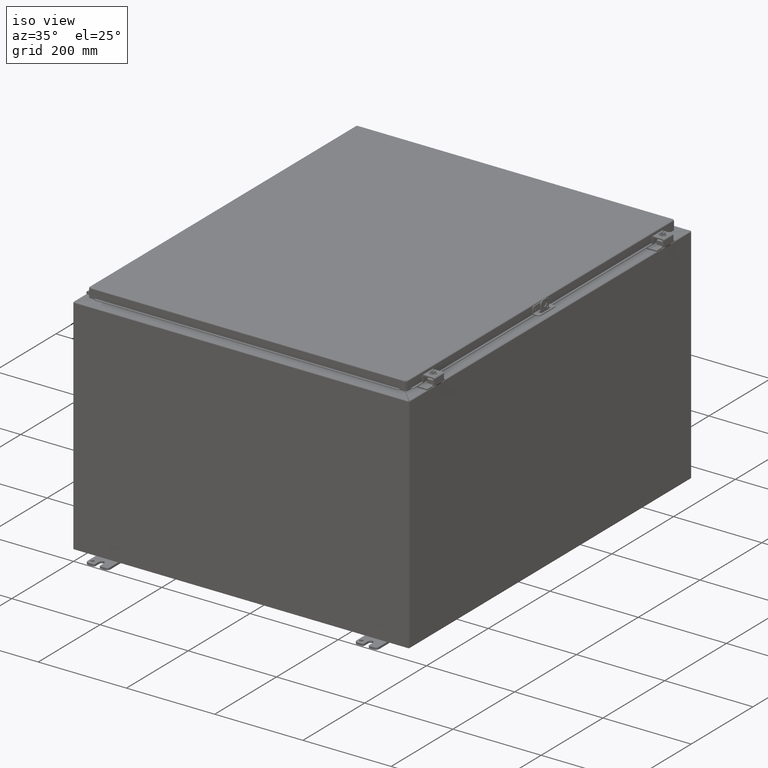
[diagram: clean part render]
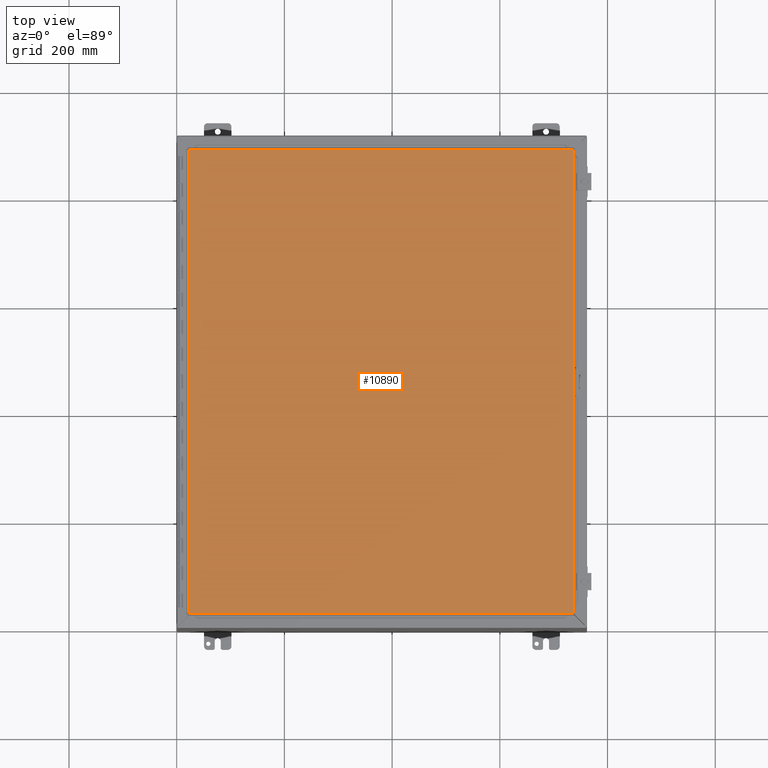
[diagram: tour spotlight — one face highlighted and labeled with its STEP entity id]
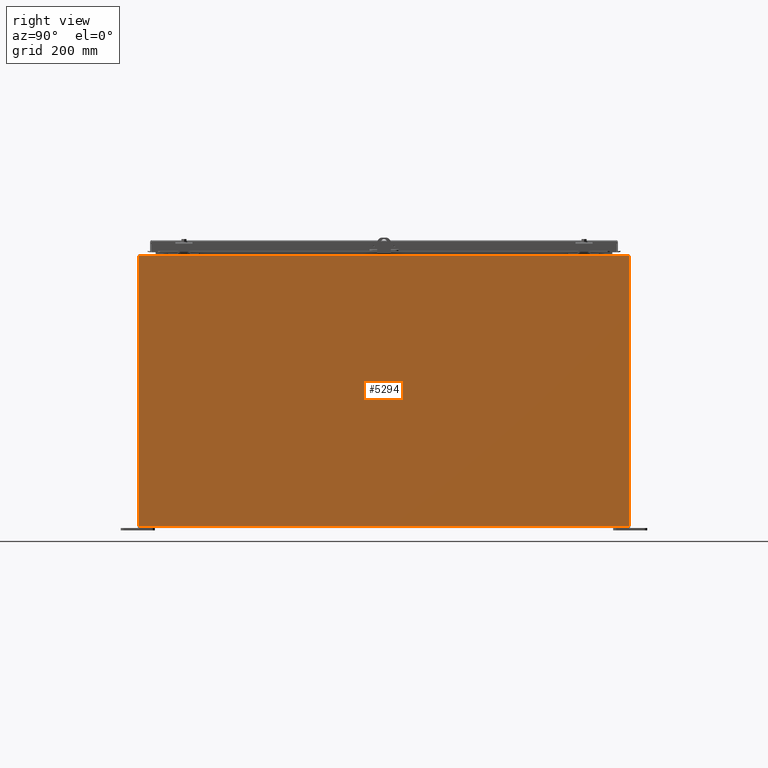
[diagram: tour spotlight — one face highlighted and labeled with its STEP entity id]
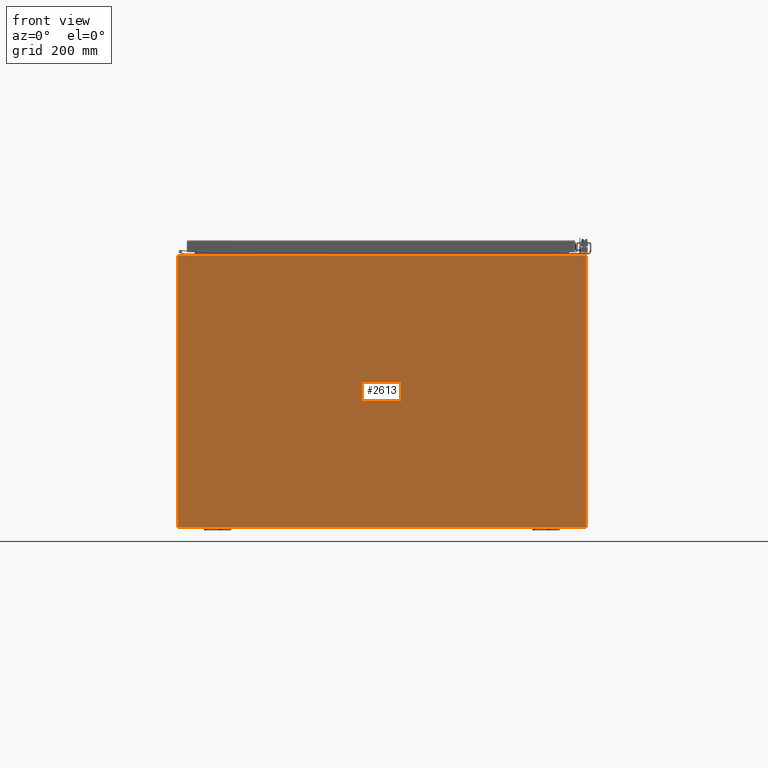
[diagram: tour spotlight — one face highlighted and labeled with its STEP entity id]
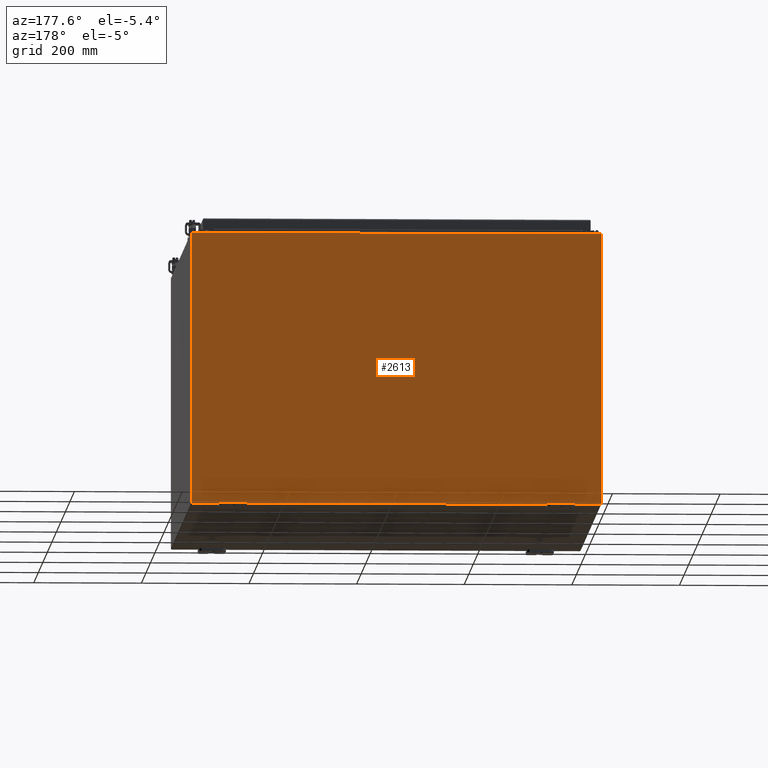
[diagram: tour spotlight — one face highlighted and labeled with its STEP entity id]
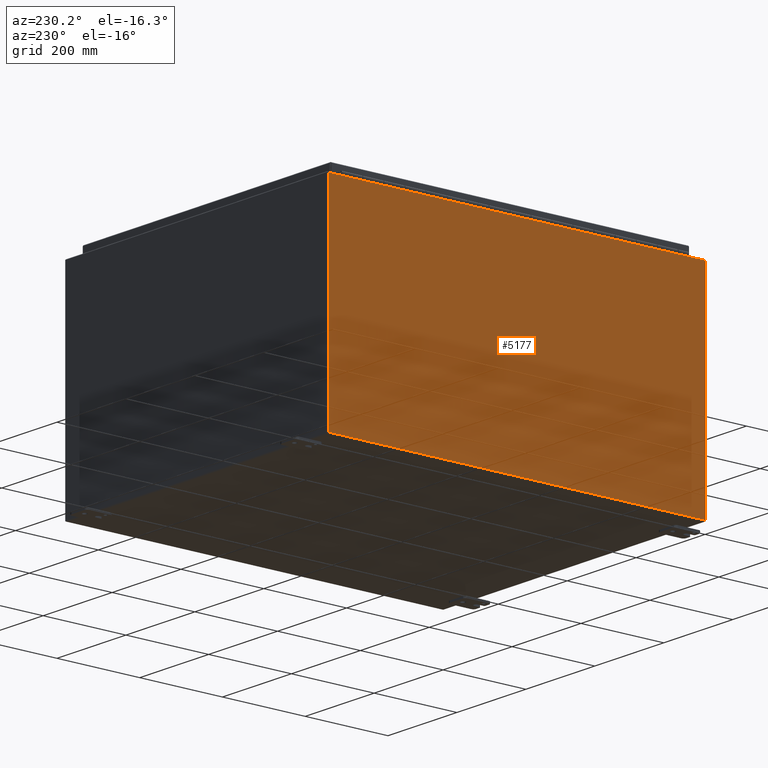
[diagram: tour spotlight — one face highlighted and labeled with its STEP entity id]
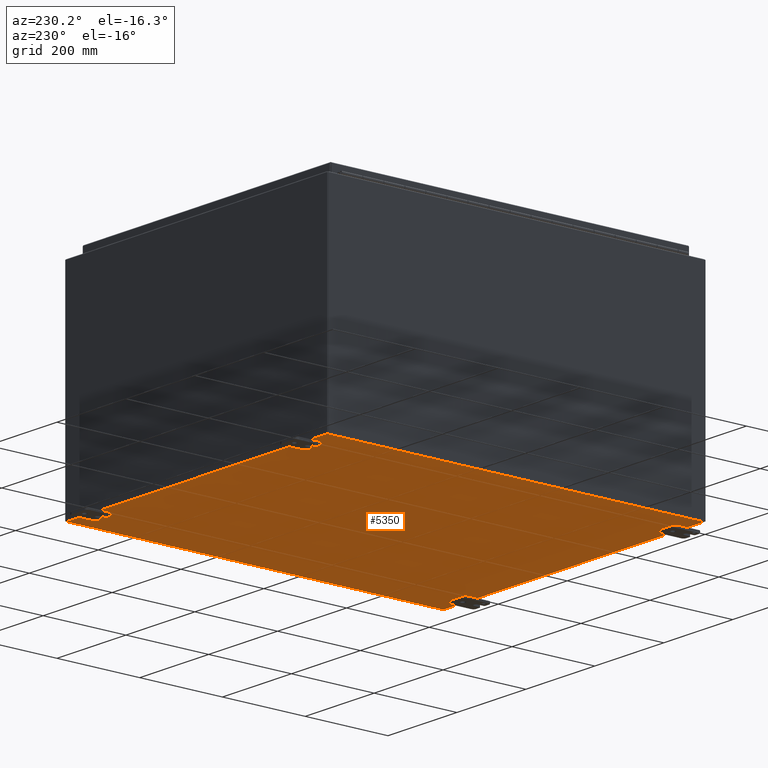
[diagram: tour spotlight — one face highlighted and labeled with its STEP entity id]
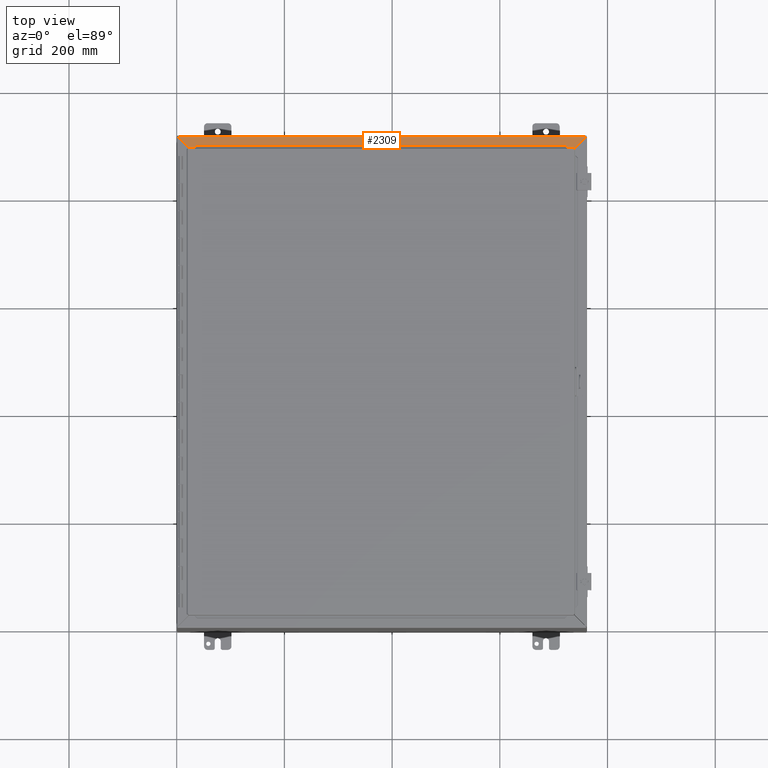
[diagram: tour spotlight — one face highlighted and labeled with its STEP entity id]
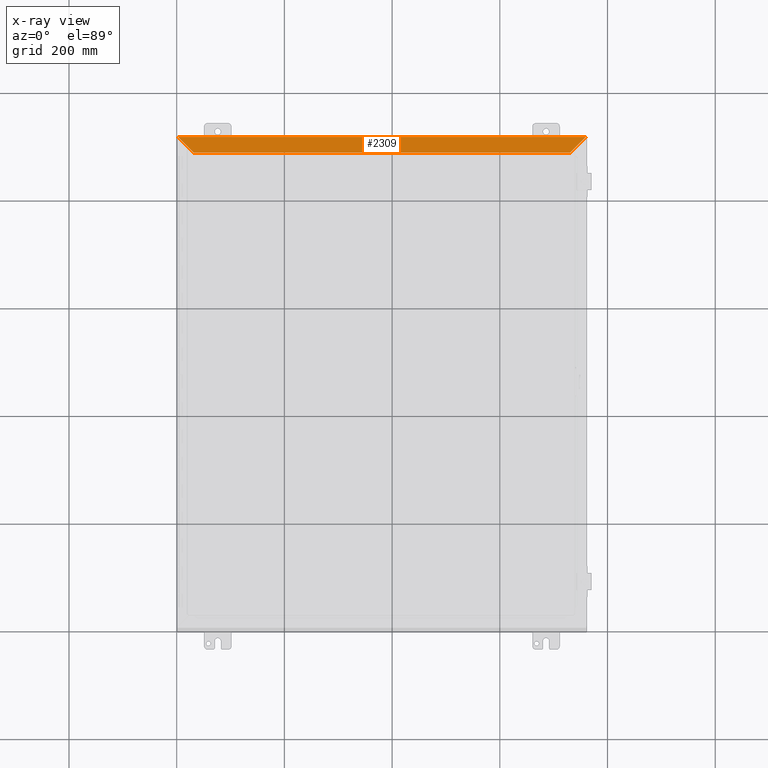
[diagram: x-ray of the same camera — body ghosted, this tour face saturated]
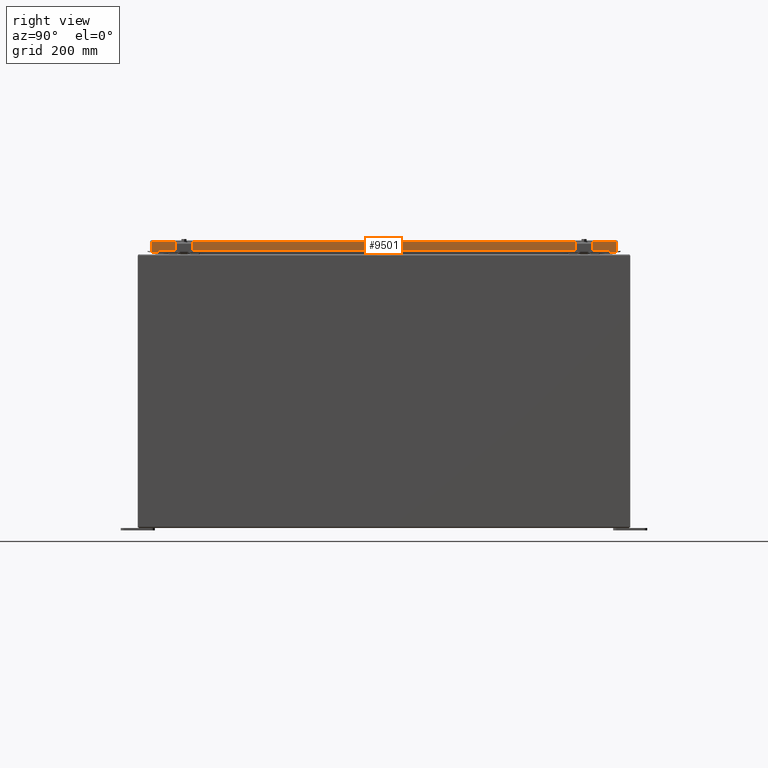
[diagram: tour spotlight — one face highlighted and labeled with its STEP entity id]
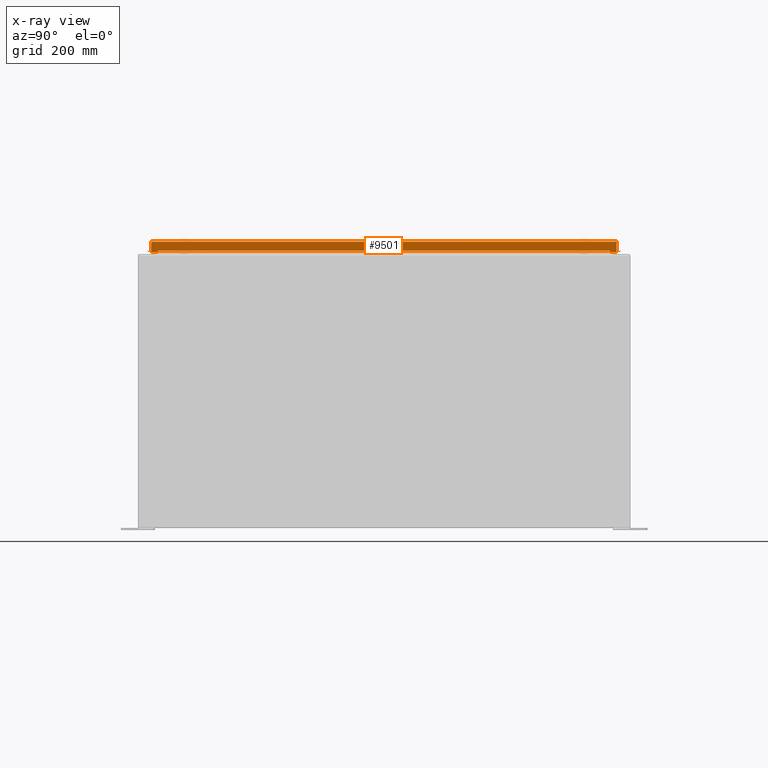
[diagram: x-ray of the same camera — body ghosted, this tour face saturated]
A machine part: a face-by-face anatomy tour. The part has 982 B-rep faces; the first image is the clean iso view, then the 8 largest visible faces are spotlighted one at a time (largest first), each with its STEP entity span.

Face 1 — top view, entity #10890. In plain terms, the highlighted planar face has unit normal (-0, -0, -1).
Definition (entity closure, byte-faithful):
#10047=CARTESIAN_POINT('',(-14.08225,-16.988500000000005,-2.185478E-017));
#10048=VERTEX_POINT('',#10047);
#10059=CARTESIAN_POINT('',(14.08225,-16.988500000000002,-1.092739E-017));
#10060=VERTEX_POINT('',#10059);
#10061=CARTESIAN_POINT('',(14.08225,-16.988500000000005,0.0));
#10062=DIRECTION('',(-1.0,0.0,0.0));
#10063=VECTOR('',#10062,28.1645);
#10064=LINE('',#10061,#10063);
#10065=EDGE_CURVE('',#10060,#10048,#10064,.T.);
#10181=CARTESIAN_POINT('',(-14.082250000000005,16.988500000000005,-2.185478E-017));
#10182=VERTEX_POINT('',#10181);
#10280=CARTESIAN_POINT('',(14.08225,16.988500000000005,-1.092739E-017));
#10281=VERTEX_POINT('',#10280);
#10292=CARTESIAN_POINT('',(-14.082250000000005,16.988500000000005,0.0));
#10293=DIRECTION('',(1.0,0.0,0.0));
#10294=VECTOR('',#10293,28.164500000000004);
#10295=LINE('',#10292,#10294);
#10296=EDGE_CURVE('',#10182,#10281,#10295,.T.);
#10601=CARTESIAN_POINT('',(-14.082250000000002,-16.988500000000009,0.0));
#10602=DIRECTION('',(0.0,1.0,0.0));
#10603=VECTOR('',#10602,33.977000000000011);
#10604=LINE('',#10601,#10603);
#10605=EDGE_CURVE('',#10048,#10182,#10604,.T.);
#10695=CARTESIAN_POINT('',(14.08225,16.988500000000005,0.0));
#10696=DIRECTION('',(0.0,-1.0,0.0));
#10697=VECTOR('',#10696,33.977000000000004);
#10698=LINE('',#10695,#10697);
#10699=EDGE_CURVE('',#10281,#10060,#10698,.T.);
#10879=CARTESIAN_POINT('',(-6.993531E-016,9.772905E-016,0.0));
#10880=DIRECTION('',(0.0,0.0,1.0));
#10881=DIRECTION('',(1.0,0.0,0.0));
#10882=AXIS2_PLACEMENT_3D('',#10879,#10880,#10881);
#10883=PLANE('',#10882);
#10884=ORIENTED_EDGE('',*,*,#10605,.T.);
#10885=ORIENTED_EDGE('',*,*,#10296,.T.);
#10886=ORIENTED_EDGE('',*,*,#10699,.T.);
#10887=ORIENTED_EDGE('',*,*,#10065,.T.);
#10888=EDGE_LOOP('',(#10884,#10885,#10886,#10887));
#10889=FACE_OUTER_BOUND('',#10888,.T.);
#10890=ADVANCED_FACE('',(#10889),#10883,.F.);

Face 2 — right view, entity #5294. In plain terms, the highlighted planar face has unit normal (-1, -0, -0).
Definition (entity closure, byte-faithful):
#4470=CARTESIAN_POINT('',(29.999999999996735,7.466095E-015,19.89475000000002));
#4471=VERTEX_POINT('',#4470);
#4873=CARTESIAN_POINT('',(29.999999999996732,35.852000000000018,19.894750000000009));
#4874=VERTEX_POINT('',#4873);
#4875=CARTESIAN_POINT('',(29.999999999996732,35.852000000000018,19.894750000000013));
#4876=DIRECTION('',(0.0,-1.0,0.0));
#4877=VECTOR('',#4876,35.852000000000011);
#4878=LINE('',#4875,#4877);
#4879=EDGE_CURVE('',#4874,#4471,#4878,.T.);
#4934=CARTESIAN_POINT('',(29.999999999999986,6.690005E-015,0.105250000000018));
#4935=VERTEX_POINT('',#4934);
#4942=CARTESIAN_POINT('',(29.999999999999986,6.690005E-015,0.105250000000018));
#4943=DIRECTION('',(-1.646246E-013,-4.636020E-029,1.0));
#4944=VECTOR('',#4943,19.7895);
#4945=LINE('',#4942,#4944);
#4946=EDGE_CURVE('',#4935,#4471,#4945,.T.);
#4981=CARTESIAN_POINT('',(29.999999999999979,35.852000000000018,0.105250000000018));
#4982=VERTEX_POINT('',#4981);
#4983=CARTESIAN_POINT('',(29.999999999994333,35.852000000000025,19.894750000000009));
#4984=DIRECTION('',(2.854450E-013,-3.590504E-016,-1.0));
#4985=VECTOR('',#4984,19.78949999999999);
#4986=LINE('',#4983,#4985);
#4987=EDGE_CURVE('',#4874,#4982,#4986,.T.);
#5200=CARTESIAN_POINT('',(29.999999999999996,3.552714E-015,0.105250000000018));
#5201=DIRECTION('',(0.0,1.0,0.0));
#5202=VECTOR('',#5201,35.852000000000018);
#5203=LINE('',#5200,#5202);
#5204=EDGE_CURVE('',#4935,#4982,#5203,.T.);
#5283=CARTESIAN_POINT('',(30.000000000002469,17.926000000000005,-14.86218388763343));
#5284=DIRECTION('',(-1.0,-2.819443E-016,-1.653775E-013));
#5285=DIRECTION('',(-1.653775E-013,-2.434996E-016,1.0));
#5286=AXIS2_PLACEMENT_3D('',#5283,#5284,#5285);
#5287=PLANE('',#5286);
#5288=ORIENTED_EDGE('',*,*,#4879,.T.);
#5289=ORIENTED_EDGE('',*,*,#4946,.F.);
#5290=ORIENTED_EDGE('',*,*,#5204,.T.);
#5291=ORIENTED_EDGE('',*,*,#4987,.F.);
#5292=EDGE_LOOP('',(#5288,#5289,#5290,#5291));
#5293=FACE_OUTER_BOUND('',#5292,.T.);
#5294=ADVANCED_FACE('',(#5293),#5287,.F.);

Face 3 — front view, entity #2613. In plain terms, the highlighted planar face has unit normal (-0, 1, -0).
Definition (entity closure, byte-faithful):
#2270=CARTESIAN_POINT('',(29.925999999999995,19.857749999999999,-2.185478E-017));
#2271=VERTEX_POINT('',#2270);
#2317=CARTESIAN_POINT('',(-5.594825E-015,19.857749999999999,-2.185478E-017));
#2318=VERTEX_POINT('',#2317);
#2319=CARTESIAN_POINT('',(-5.329071E-015,19.857749999999999,-1.092739E-017));
#2320=DIRECTION('',(1.0,0.0,0.0));
#2321=VECTOR('',#2320,29.926000000000002);
#2322=LINE('',#2319,#2321);
#2323=EDGE_CURVE('',#2318,#2271,#2322,.T.);
#2565=CARTESIAN_POINT('',(5.170813E-016,0.0,-1.092739E-017));
#2566=VERTEX_POINT('',#2565);
#2567=CARTESIAN_POINT('',(-5.562601E-015,19.857750000000003,-1.092739E-017));
#2568=DIRECTION('',(0.0,-1.0,0.0));
#2569=VECTOR('',#2568,19.857750000000003);
#2570=LINE('',#2567,#2569);
#2571=EDGE_CURVE('',#2318,#2566,#2570,.T.);
#2590=CARTESIAN_POINT('',(14.962999999999997,9.981499999999999,-1.092739E-017));
#2591=DIRECTION('',(0.0,0.0,1.0));
#2592=DIRECTION('',(1.0,0.0,0.0));
#2593=AXIS2_PLACEMENT_3D('',#2590,#2591,#2592);
#2594=PLANE('',#2593);
#2595=ORIENTED_EDGE('',*,*,#2323,.T.);
#2596=CARTESIAN_POINT('',(29.926000000000002,0.0,-1.092739E-017));
#2597=VERTEX_POINT('',#2596);
#2598=CARTESIAN_POINT('',(29.926000000000002,0.0,-1.092739E-017));
#2599=DIRECTION('',(0.0,1.0,0.0));
#2600=VECTOR('',#2599,19.857749999999999);
#2601=LINE('',#2598,#2600);
#2602=EDGE_CURVE('',#2597,#2271,#2601,.T.);
#2603=ORIENTED_EDGE('',*,*,#2602,.F.);
#2604=CARTESIAN_POINT('',(5.170813E-016,0.0,-1.092739E-017));
#2605=DIRECTION('',(1.0,0.0,0.0));
#2606=VECTOR('',#2605,29.926000000000002);
#2607=LINE('',#2604,#2606);
#2608=EDGE_CURVE('',#2566,#2597,#2607,.T.);
#2609=ORIENTED_EDGE('',*,*,#2608,.F.);
#2610=ORIENTED_EDGE('',*,*,#2571,.F.);
#2611=EDGE_LOOP('',(#2595,#2603,#2609,#2610));
#2612=FACE_OUTER_BOUND('',#2611,.T.);
#2613=ADVANCED_FACE('',(#2612),#2594,.F.);

Face 4 — auxiliary view, entity #2613. In plain terms, the highlighted planar face has unit normal (0, -1, 0).
Definition (entity closure, byte-faithful):
#2270=CARTESIAN_POINT('',(29.925999999999995,19.857749999999999,-2.185478E-017));
#2271=VERTEX_POINT('',#2270);
#2317=CARTESIAN_POINT('',(-5.594825E-015,19.857749999999999,-2.185478E-017));
#2318=VERTEX_POINT('',#2317);
#2319=CARTESIAN_POINT('',(-5.329071E-015,19.857749999999999,-1.092739E-017));
#2320=DIRECTION('',(1.0,0.0,0.0));
#2321=VECTOR('',#2320,29.926000000000002);
#2322=LINE('',#2319,#2321);
#2323=EDGE_CURVE('',#2318,#2271,#2322,.T.);
#2565=CARTESIAN_POINT('',(5.170813E-016,0.0,-1.092739E-017));
#2566=VERTEX_POINT('',#2565);
#2567=CARTESIAN_POINT('',(-5.562601E-015,19.857750000000003,-1.092739E-017));
#2568=DIRECTION('',(0.0,-1.0,0.0));
#2569=VECTOR('',#2568,19.857750000000003);
#2570=LINE('',#2567,#2569);
#2571=EDGE_CURVE('',#2318,#2566,#2570,.T.);
#2590=CARTESIAN_POINT('',(14.962999999999997,9.981499999999999,-1.092739E-017));
#2591=DIRECTION('',(0.0,0.0,1.0));
#2592=DIRECTION('',(1.0,0.0,0.0));
#2593=AXIS2_PLACEMENT_3D('',#2590,#2591,#2592);
#2594=PLANE('',#2593);
#2595=ORIENTED_EDGE('',*,*,#2323,.T.);
#2596=CARTESIAN_POINT('',(29.926000000000002,0.0,-1.092739E-017));
#2597=VERTEX_POINT('',#2596);
#2598=CARTESIAN_POINT('',(29.926000000000002,0.0,-1.092739E-017));
#2599=DIRECTION('',(0.0,1.0,0.0));
#2600=VECTOR('',#2599,19.857749999999999);
#2601=LINE('',#2598,#2600);
#2602=EDGE_CURVE('',#2597,#2271,#2601,.T.);
#2603=ORIENTED_EDGE('',*,*,#2602,.F.);
#2604=CARTESIAN_POINT('',(5.170813E-016,0.0,-1.092739E-017));
#2605=DIRECTION('',(1.0,0.0,0.0));
#2606=VECTOR('',#2605,29.926000000000002);
#2607=LINE('',#2604,#2606);
#2608=EDGE_CURVE('',#2566,#2597,#2607,.T.);
#2609=ORIENTED_EDGE('',*,*,#2608,.F.);
#2610=ORIENTED_EDGE('',*,*,#2571,.F.);
#2611=EDGE_LOOP('',(#2595,#2603,#2609,#2610));
#2612=FACE_OUTER_BOUND('',#2611,.T.);
#2613=ADVANCED_FACE('',(#2612),#2594,.F.);

Face 5 — auxiliary view, entity #5177. In plain terms, the highlighted planar face has unit normal (1, 0, 0).
Definition (entity closure, byte-faithful):
#4503=CARTESIAN_POINT('',(-3.864561E-013,35.852000000000004,19.894750000000013));
#4504=VERTEX_POINT('',#4503);
#4610=CARTESIAN_POINT('',(-3.754675E-013,4.523219E-016,19.894750000000002));
#4611=VERTEX_POINT('',#4610);
#4612=CARTESIAN_POINT('',(-3.754935E-013,0.0,19.894749999999995));
#4613=DIRECTION('',(0.0,1.0,0.0));
#4614=VECTOR('',#4613,35.852000000000004);
#4615=LINE('',#4612,#4614);
#4616=EDGE_CURVE('',#4611,#4504,#4615,.T.);
#5013=CARTESIAN_POINT('',(-1.101533E-014,35.852000000000004,0.105249999999998));
#5014=VERTEX_POINT('',#5013);
#5021=CARTESIAN_POINT('',(-1.101533E-014,35.852000000000004,0.105249999999998));
#5022=DIRECTION('',(0.0,0.0,1.0));
#5023=VECTOR('',#5022,19.789500000000015);
#5024=LINE('',#5021,#5023);
#5025=EDGE_CURVE('',#5014,#4504,#5024,.T.);
#5060=CARTESIAN_POINT('',(-4.521314E-017,-9.967744E-018,0.105249999999998));
#5061=VERTEX_POINT('',#5060);
#5062=CARTESIAN_POINT('',(-3.742655E-013,-6.157755E-015,19.894750000000002));
#5063=DIRECTION('',(0.0,0.0,-1.0));
#5064=VECTOR('',#5063,19.789500000000004);
#5065=LINE('',#5062,#5064);
#5066=EDGE_CURVE('',#4611,#5061,#5065,.T.);
#5083=CARTESIAN_POINT('',(-1.103719E-014,35.852000000000004,0.105249999999998));
#5084=DIRECTION('',(0.0,-1.0,0.0));
#5085=VECTOR('',#5084,35.852000000000004);
#5086=LINE('',#5083,#5085);
#5087=EDGE_CURVE('',#5014,#5061,#5086,.T.);
#5166=CARTESIAN_POINT('',(3.383319E-014,17.925999999999995,-14.862183887633455));
#5167=DIRECTION('',(1.0,0.0,0.0));
#5168=DIRECTION('',(0.0,0.0,-1.0));
#5169=AXIS2_PLACEMENT_3D('',#5166,#5167,#5168);
#5170=PLANE('',#5169);
#5171=ORIENTED_EDGE('',*,*,#4616,.T.);
#5172=ORIENTED_EDGE('',*,*,#5025,.F.);
#5173=ORIENTED_EDGE('',*,*,#5087,.T.);
#5174=ORIENTED_EDGE('',*,*,#5066,.F.);
#5175=EDGE_LOOP('',(#5171,#5172,#5173,#5174));
#5176=FACE_OUTER_BOUND('',#5175,.T.);
#5177=ADVANCED_FACE('',(#5176),#5170,.F.);

Face 6 — auxiliary view, entity #5350. In plain terms, the highlighted planar face has unit normal (0, 0, 1).
Definition (entity closure, byte-faithful):
#5089=CARTESIAN_POINT('',(0.10524999999999,35.852000000000004,-5.463696E-017));
#5090=VERTEX_POINT('',#5089);
#5098=CARTESIAN_POINT('',(0.105250000000001,0.0,-5.463696E-017));
#5099=VERTEX_POINT('',#5098);
#5100=CARTESIAN_POINT('',(0.105249999999998,0.0,-3.278218E-017));
#5101=DIRECTION('',(0.0,1.0,0.0));
#5102=VECTOR('',#5101,35.852000000000004);
#5103=LINE('',#5100,#5102);
#5104=EDGE_CURVE('',#5099,#5090,#5103,.T.);
#5206=CARTESIAN_POINT('',(29.894750000000009,0.0,-6.556435E-017));
#5207=VERTEX_POINT('',#5206);
#5215=CARTESIAN_POINT('',(29.894749999999995,35.852000000000011,-6.556435E-017));
#5216=VERTEX_POINT('',#5215);
#5217=CARTESIAN_POINT('',(29.894749999999988,35.852000000000004,-3.278218E-017));
#5218=DIRECTION('',(0.0,-1.0,0.0));
#5219=VECTOR('',#5218,35.852000000000004);
#5220=LINE('',#5217,#5219);
#5221=EDGE_CURVE('',#5216,#5207,#5220,.T.);
#5318=CARTESIAN_POINT('',(29.894749999999995,35.852000000000011,-3.278218E-017));
#5319=DIRECTION('',(-1.0,0.0,0.0));
#5320=VECTOR('',#5319,29.789500000000007);
#5321=LINE('',#5318,#5320);
#5322=EDGE_CURVE('',#5216,#5090,#5321,.T.);
#5334=CARTESIAN_POINT('',(14.999999999999996,17.925999999999998,-3.278218E-017));
#5335=DIRECTION('',(0.0,0.0,1.0));
#5336=DIRECTION('',(1.0,0.0,0.0));
#5337=AXIS2_PLACEMENT_3D('',#5334,#5335,#5336);
#5338=PLANE('',#5337);
#5339=ORIENTED_EDGE('',*,*,#5221,.T.);
#5340=CARTESIAN_POINT('',(0.105250000000001,0.0,-3.278218E-017));
#5341=DIRECTION('',(1.0,0.0,0.0));
#5342=VECTOR('',#5341,29.789500000000007);
#5343=LINE('',#5340,#5342);
#5344=EDGE_CURVE('',#5099,#5207,#5343,.T.);
#5345=ORIENTED_EDGE('',*,*,#5344,.F.);
#5346=ORIENTED_EDGE('',*,*,#5104,.T.);
#5347=ORIENTED_EDGE('',*,*,#5322,.F.);
#5348=EDGE_LOOP('',(#5339,#5345,#5346,#5347));
#5349=FACE_OUTER_BOUND('',#5348,.T.);
#5350=ADVANCED_FACE('',(#5349),#5338,.F.);

Face 7 — top view, entity #2309. An x-ray twin of the same camera follows (body ghosted, this face saturated) — the face is partly hidden behind the body. In plain terms, the highlighted planar face has unit normal (0, -0, -1).
Definition (entity closure, byte-faithful):
#1782=CARTESIAN_POINT('',(28.699567696899827,19.963000000000058,1.269749999999996));
#1783=VERTEX_POINT('',#1782);
#1842=CARTESIAN_POINT('',(1.226432303100167,19.963000000000058,1.269749999999996));
#1843=VERTEX_POINT('',#1842);
#1913=CARTESIAN_POINT('',(29.864075840854607,19.963000000000001,0.105249999999993));
#1914=VERTEX_POINT('',#1913);
#1921=CARTESIAN_POINT('',(28.699567696899827,19.963000000000083,1.269749999999996));
#1922=DIRECTION('',(0.70710925375651,-4.961718E-014,-0.707104308607939));
#1923=VECTOR('',#1922,1.646857452039191);
#1924=LINE('',#1921,#1923);
#1925=EDGE_CURVE('',#1783,#1914,#1924,.T.);
#1937=CARTESIAN_POINT('',(0.061924159145384,19.963000000000001,0.105249999999993));
#1938=VERTEX_POINT('',#1937);
#1939=CARTESIAN_POINT('',(0.061924159145385,19.963000000000001,0.105249999999992));
#1940=DIRECTION('',(0.70710925375651,4.961718E-014,0.707104308607939));
#1941=VECTOR('',#1940,1.646857452039193);
#1942=LINE('',#1939,#1941);
#1943=EDGE_CURVE('',#1938,#1843,#1942,.T.);
#2288=CARTESIAN_POINT('',(14.962999999999997,19.962999999999312,-9.843683887633461));
#2289=DIRECTION('',(0.0,-1.0,0.0));
#2290=DIRECTION('',(1.0,0.0,0.0));
#2291=AXIS2_PLACEMENT_3D('',#2288,#2289,#2290);
#2292=PLANE('',#2291);
#2293=ORIENTED_EDGE('',*,*,#1925,.T.);
#2294=CARTESIAN_POINT('',(29.864075840854607,19.963000000000001,0.105249999999993));
#2295=DIRECTION('',(-1.0,0.0,0.0));
#2296=VECTOR('',#2295,29.802151681709223);
#2297=LINE('',#2294,#2296);
#2298=EDGE_CURVE('',#1914,#1938,#2297,.T.);
#2299=ORIENTED_EDGE('',*,*,#2298,.T.);
#2300=ORIENTED_EDGE('',*,*,#1943,.T.);
#2301=CARTESIAN_POINT('',(1.226432303100168,19.963000000000058,1.269749999999996));
#2302=DIRECTION('',(1.0,0.0,0.0));
#2303=VECTOR('',#2302,27.473135393799659);
#2304=LINE('',#2301,#2303);
#2305=EDGE_CURVE('',#1843,#1783,#2304,.T.);
#2306=ORIENTED_EDGE('',*,*,#2305,.T.);
#2307=EDGE_LOOP('',(#2293,#2299,#2300,#2306));
#2308=FACE_OUTER_BOUND('',#2307,.T.);
#2309=ADVANCED_FACE('',(#2308),#2292,.F.);

Face 8 — right view, entity #9501. An x-ray twin of the same camera follows (body ghosted, this face saturated) — the face is partly hidden behind the body. In plain terms, the highlighted planar face has unit normal (-1, -0, 0).
Definition (entity closure, byte-faithful):
#7560=CARTESIAN_POINT('',(14.187500000000018,-0.8125,0.497499999999995));
#7561=VERTEX_POINT('',#7560);
#7568=CARTESIAN_POINT('',(14.187500000000018,-0.812500000000001,0.434499999999995));
#7569=VERTEX_POINT('',#7568);
#7570=CARTESIAN_POINT('',(14.187500000000011,-0.812500000000001,0.434499999999995));
#7571=DIRECTION('',(0.0,0.0,1.0));
#7572=VECTOR('',#7571,0.063);
#7573=LINE('',#7570,#7572);
#7574=EDGE_CURVE('',#7569,#7561,#7573,.T.);
#7600=CARTESIAN_POINT('',(14.187500000000018,-0.687500000000001,0.434499999999995));
#7601=VERTEX_POINT('',#7600);
#7602=CARTESIAN_POINT('',(14.187500000000012,-0.750000000000001,0.434499999999995));
#7603=DIRECTION('',(-1.0,0.0,0.0));
#7604=DIRECTION('',(0.0,-1.0,0.0));
#7605=AXIS2_PLACEMENT_3D('',#7602,#7603,#7604);
#7606=CIRCLE('',#7605,0.0625);
#7607=EDGE_CURVE('',#7601,#7569,#7606,.T.);
#7632=CARTESIAN_POINT('',(14.187500000000018,-0.687500000000001,0.497499999999995));
#7633=VERTEX_POINT('',#7632);
#7634=CARTESIAN_POINT('',(14.187500000000014,-0.6875,0.497499999999995));
#7635=DIRECTION('',(0.0,0.0,-1.0));
#7636=VECTOR('',#7635,0.063);
#7637=LINE('',#7634,#7636);
#7638=EDGE_CURVE('',#7633,#7601,#7637,.T.);
#7662=CARTESIAN_POINT('',(14.187500000000016,-0.75,0.497499999999995));
#7663=DIRECTION('',(-1.0,0.0,0.0));
#7664=DIRECTION('',(0.0,1.0,0.0));
#7665=AXIS2_PLACEMENT_3D('',#7662,#7663,#7664);
#7666=CIRCLE('',#7665,0.0625);
#7667=EDGE_CURVE('',#7561,#7633,#7666,.T.);
#7700=CARTESIAN_POINT('',(14.187500000000016,0.687500000000001,0.497499999999995));
#7701=VERTEX_POINT('',#7700);
#7708=CARTESIAN_POINT('',(14.187500000000016,0.6875,0.434499999999995));
#7709=VERTEX_POINT('',#7708);
#7710=CARTESIAN_POINT('',(14.187500000000011,0.687500000000001,0.434499999999995));
#7711=DIRECTION('',(0.0,0.0,1.0));
#7712=VECTOR('',#7711,0.063);
#7713=LINE('',#7710,#7712);
#7714=EDGE_CURVE('',#7709,#7701,#7713,.T.);
#7740=CARTESIAN_POINT('',(14.187500000000016,0.8125,0.434499999999995));
#7741=VERTEX_POINT('',#7740);
#7742=CARTESIAN_POINT('',(14.187500000000012,0.75,0.434499999999995));
#7743=DIRECTION('',(-1.0,0.0,0.0));
#7744=DIRECTION('',(0.0,-1.0,0.0));
#7745=AXIS2_PLACEMENT_3D('',#7742,#7743,#7744);
#7746=CIRCLE('',#7745,0.0625);
#7747=EDGE_CURVE('',#7741,#7709,#7746,.T.);
#7772=CARTESIAN_POINT('',(14.187500000000016,0.8125,0.497499999999995));
#7773=VERTEX_POINT('',#7772);
#7774=CARTESIAN_POINT('',(14.187500000000014,0.8125,0.497499999999995));
#7775=DIRECTION('',(0.0,0.0,-1.0));
#7776=VECTOR('',#7775,0.063);
#7777=LINE('',#7774,#7776);
#7778=EDGE_CURVE('',#7773,#7741,#7777,.T.);
#7802=CARTESIAN_POINT('',(14.187500000000016,0.75,0.497499999999995));
#7803=DIRECTION('',(-1.0,0.0,0.0));
#7804=DIRECTION('',(0.0,1.0,0.0));
#7805=AXIS2_PLACEMENT_3D('',#7802,#7803,#7804);
#7806=CIRCLE('',#7805,0.0625);
#7807=EDGE_CURVE('',#7701,#7773,#7806,.T.);
#8542=CARTESIAN_POINT('',(14.187500000000025,16.508701456543964,0.769749999999996));
#8543=VERTEX_POINT('',#8542);
#8568=CARTESIAN_POINT('',(14.187500000000025,-16.508701456543964,0.769749999999996));
#8569=VERTEX_POINT('',#8568);
#8624=CARTESIAN_POINT('',(14.187500000000025,16.50870145654396,0.769749999999995));
#8625=DIRECTION('',(0.0,-1.0,0.0));
#8626=VECTOR('',#8625,33.017402913087921);
#8627=LINE('',#8624,#8626);
#8628=EDGE_CURVE('',#8543,#8569,#8627,.T.);
#9212=CARTESIAN_POINT('',(14.187500000000025,-16.508701456543964,0.769549999999996));
#9213=VERTEX_POINT('',#9212);
#9220=CARTESIAN_POINT('',(14.187500000000023,-16.508701456543964,0.769749999999996));
#9221=DIRECTION('',(0.0,0.0,-1.0));
#9222=VECTOR('',#9221,0.0002);
#9223=LINE('',#9220,#9222);
#9224=EDGE_CURVE('',#8569,#9213,#9223,.T.);
#9244=CARTESIAN_POINT('',(14.187500000000027,-16.508901456543963,0.874999999999996));
#9245=VERTEX_POINT('',#9244);
#9252=CARTESIAN_POINT('',(14.187500000000025,-16.508901456543963,0.769549999999996));
#9253=VERTEX_POINT('',#9252);
#9254=CARTESIAN_POINT('',(14.187500000000025,-16.508901456543963,0.769549999999996));
#9255=DIRECTION('',(0.0,0.0,1.0));
#9256=VECTOR('',#9255,0.10545);
#9257=LINE('',#9254,#9256);
#9258=EDGE_CURVE('',#9253,#9245,#9257,.T.);
#9281=CARTESIAN_POINT('',(14.187500000000025,-16.50870145654396,0.769549999999996));
#9282=DIRECTION('',(0.0,-1.0,0.0));
#9283=VECTOR('',#9282,0.000200000000003);
#9284=LINE('',#9281,#9283);
#9285=EDGE_CURVE('',#9213,#9253,#9284,.T.);
#9371=CARTESIAN_POINT('',(14.187500000000025,16.508901456543967,0.769549999999996));
#9372=VERTEX_POINT('',#9371);
#9379=CARTESIAN_POINT('',(14.187500000000027,16.508901456543967,0.874999999999996));
#9380=VERTEX_POINT('',#9379);
#9381=CARTESIAN_POINT('',(14.187500000000027,16.508901456543967,0.874999999999996));
#9382=DIRECTION('',(0.0,0.0,-1.0));
#9383=VECTOR('',#9382,0.10545);
#9384=LINE('',#9381,#9383);
#9385=EDGE_CURVE('',#9380,#9372,#9384,.T.);
#9402=CARTESIAN_POINT('',(14.187500000000025,16.508701456543964,0.769549999999996));
#9403=VERTEX_POINT('',#9402);
#9404=CARTESIAN_POINT('',(14.187500000000025,16.508701456543964,0.769549999999996));
#9405=DIRECTION('',(0.0,0.0,1.0));
#9406=VECTOR('',#9405,0.0002);
#9407=LINE('',#9404,#9406);
#9408=EDGE_CURVE('',#9403,#8543,#9407,.T.);
#9427=CARTESIAN_POINT('',(14.187500000000025,16.508901456543967,0.769549999999996));
#9428=DIRECTION('',(0.0,-1.0,0.0));
#9429=VECTOR('',#9428,0.000200000000003);
#9430=LINE('',#9427,#9429);
#9431=EDGE_CURVE('',#9372,#9403,#9430,.T.);
#9437=CARTESIAN_POINT('',(14.187500000000012,-4.589505E-016,0.440238508796664));
#9438=DIRECTION('',(-1.0,0.0,0.0));
#9439=DIRECTION('',(0.0,0.0,1.0));
#9440=AXIS2_PLACEMENT_3D('',#9437,#9438,#9439);
#9441=PLANE('',#9440);
#9442=ORIENTED_EDGE('',*,*,#9258,.T.);
#9443=CARTESIAN_POINT('',(14.187500000000027,-17.008701456543964,0.874999999999996));
#9444=VERTEX_POINT('',#9443);
#9445=CARTESIAN_POINT('',(14.187500000000027,-17.008701456543964,0.874999999999996));
#9446=DIRECTION('',(0.0,1.0,0.0));
#9447=VECTOR('',#9446,0.4998);
#9448=LINE('',#9445,#9447);
#9449=EDGE_CURVE('',#9444,#9245,#9448,.T.);
#9450=ORIENTED_EDGE('',*,*,#9449,.F.);
#9451=CARTESIAN_POINT('',(14.187500000000002,-17.008701456543964,0.105249999999998));
#9452=VERTEX_POINT('',#9451);
#9453=CARTESIAN_POINT('',(14.187500000000002,-17.008701456543964,0.105249999999998));
#9454=DIRECTION('',(0.0,0.0,1.0));
#9455=VECTOR('',#9454,0.769749999999998);
#9456=LINE('',#9453,#9455);
#9457=EDGE_CURVE('',#9452,#9444,#9456,.T.);
#9458=ORIENTED_EDGE('',*,*,#9457,.F.);
#9459=CARTESIAN_POINT('',(14.187500000000002,17.008701456543967,0.105249999999998));
#9460=VERTEX_POINT('',#9459);
#9461=CARTESIAN_POINT('',(14.187500000000002,-17.008701456543964,0.105249999999993));
#9462=DIRECTION('',(0.0,1.0,0.0));
#9463=VECTOR('',#9462,34.017402913087935);
#9464=LINE('',#9461,#9463);
#9465=EDGE_CURVE('',#9452,#9460,#9464,.T.);
#9466=ORIENTED_EDGE('',*,*,#9465,.T.);
#9467=CARTESIAN_POINT('',(14.187500000000027,17.008701456543967,0.874999999999996));
#9468=VERTEX_POINT('',#9467);
#9469=CARTESIAN_POINT('',(14.187500000000028,17.008701456543967,0.874999999999996));
#9470=DIRECTION('',(0.0,0.0,-1.0));
#9471=VECTOR('',#9470,0.769749999999998);
#9472=LINE('',#9469,#9471);
#9473=EDGE_CURVE('',#9468,#9460,#9472,.T.);
#9474=ORIENTED_EDGE('',*,*,#9473,.F.);
#9475=CARTESIAN_POINT('',(14.187500000000027,16.50890145654397,0.874999999999996));
#9476=DIRECTION('',(0.0,1.0,0.0));
#9477=VECTOR('',#9476,0.499799999999993);
#9478=LINE('',#9475,#9477);
#9479=EDGE_CURVE('',#9380,#9468,#9478,.T.);
#9480=ORIENTED_EDGE('',*,*,#9479,.F.);
#9481=ORIENTED_EDGE('',*,*,#9385,.T.);
#9482=ORIENTED_EDGE('',*,*,#9431,.T.);
#9483=ORIENTED_EDGE('',*,*,#9408,.T.);
#9484=ORIENTED_EDGE('',*,*,#8628,.T.);
#9485=ORIENTED_EDGE('',*,*,#9224,.T.);
#9486=ORIENTED_EDGE('',*,*,#9285,.T.);
#9487=EDGE_LOOP('',(#9442,#9450,#9458,#9466,#9474,#9480,#9481,#9482,#9483,#9484,#9485,#9486));
#9488=FACE_OUTER_BOUND('',#9487,.T.);
#9489=ORIENTED_EDGE('',*,*,#7574,.T.);
#9490=ORIENTED_EDGE('',*,*,#7667,.T.);
#9491=ORIENTED_EDGE('',*,*,#7638,.T.);
#9492=ORIENTED_EDGE('',*,*,#7607,.T.);
#9493=EDGE_LOOP('',(#9489,#9490,#9491,#9492));
#9494=FACE_BOUND('',#9493,.T.);
#9495=ORIENTED_EDGE('',*,*,#7714,.T.);
#9496=ORIENTED_EDGE('',*,*,#7807,.T.);
#9497=ORIENTED_EDGE('',*,*,#7778,.T.);
#9498=ORIENTED_EDGE('',*,*,#7747,.T.);
#9499=EDGE_LOOP('',(#9495,#9496,#9497,#9498));
#9500=FACE_BOUND('',#9499,.T.);
#9501=ADVANCED_FACE('',(#9488,#9494,#9500),#9441,.F.);